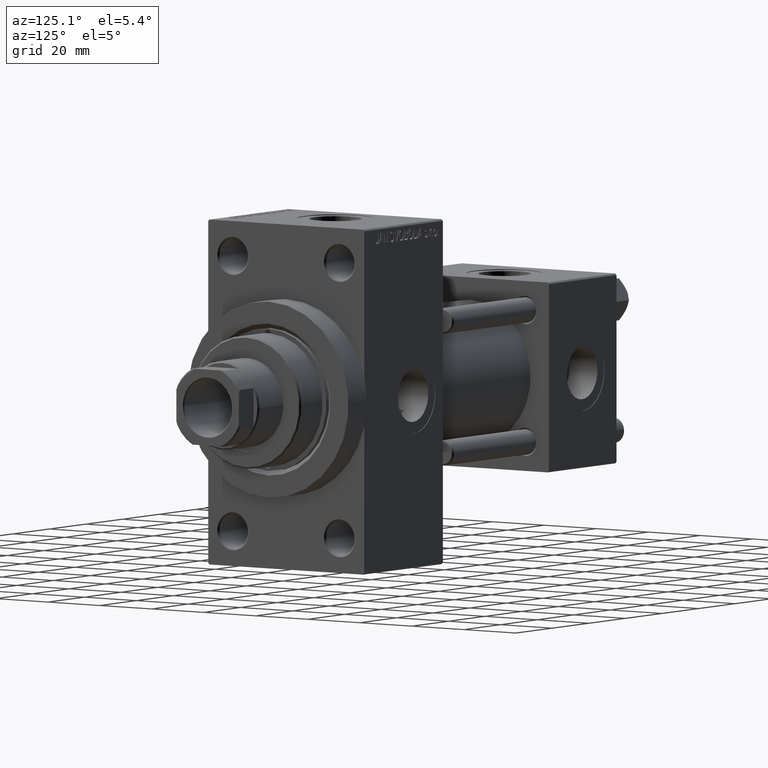
[diagram: clean part render]
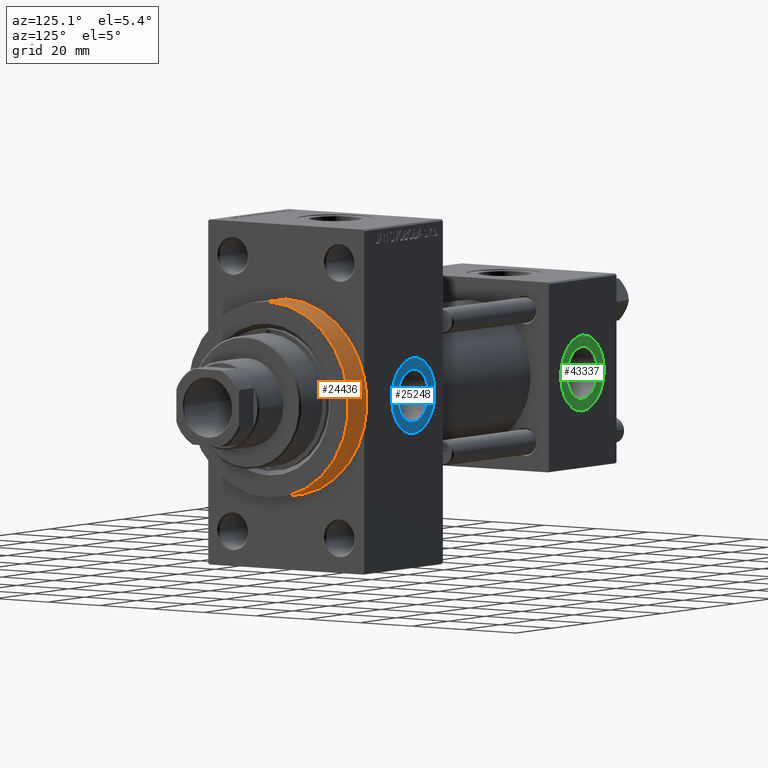
[diagram: same view with three faces highlighted in distinct colors, each labeled with its STEP entity id]
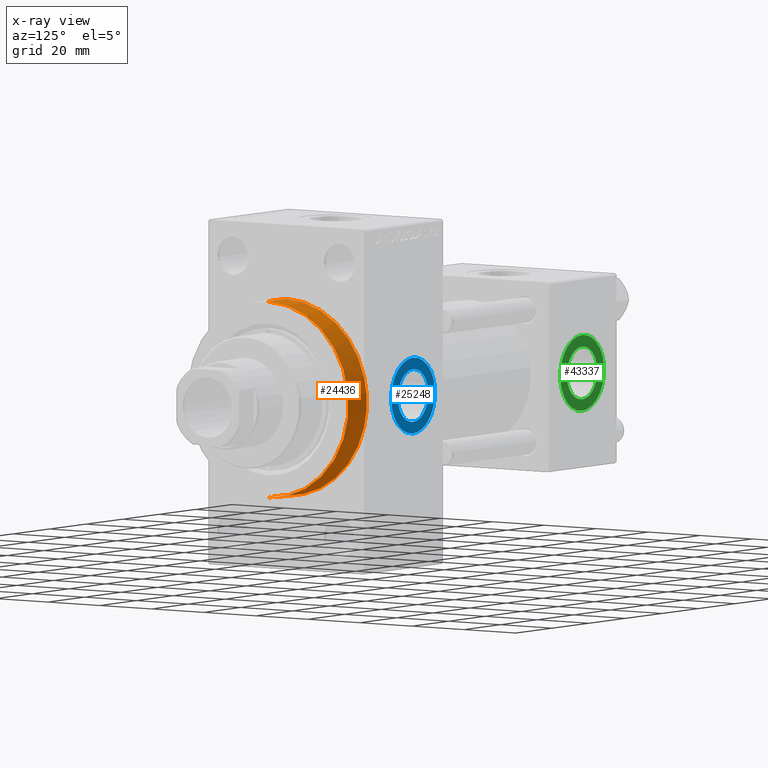
[diagram: x-ray of the same camera — body ghosted, the three highlighted faces saturated]
A machine part, auxiliary view with three faces highlighted in distinct colors.
The next image is the same camera in x-ray (body ghosted, the three faces saturated) — at least one of them is partly hidden behind the body in this view.
Their STEP definitions:

[orange] entity #24436 — the highlighted cylindrical surface (partial cylindrical patch) has radius 31 mm, axis along (-1, -0, -0).
#1157 = DIRECTION ( 'NONE',  ( 1.000000000000000000, 0.000000000000000000, 0.000000000000000000 ) ) ;
#2774 = CARTESIAN_POINT ( 'NONE',  ( 148.0000000000000284, 0.000000000000000000, 0.000000000000000000 ) ) ;
#3003 = VERTEX_POINT ( 'NONE', #24509 ) ;
#3210 = CARTESIAN_POINT ( 'NONE',  ( 148.0000000000000284, 3.796405077356795115E-15, -31.00000000000000000 ) ) ;
#3234 = ORIENTED_EDGE ( 'NONE', *, *, #32455, .T. ) ;
#5202 = ORIENTED_EDGE ( 'NONE', *, *, #42363, .T. ) ;
#5949 = CIRCLE ( 'NONE', #33225, 31.00000000000000000 ) ;
#6505 = VERTEX_POINT ( 'NONE', #27874 ) ;
#7852 = CIRCLE ( 'NONE', #24990, 31.00000000000000000 ) ;
#9158 = CARTESIAN_POINT ( 'NONE',  ( 148.0000000000000284, 0.000000000000000000, 31.00000000000000000 ) ) ;
#9165 = CIRCLE ( 'NONE', #33220, 31.00000000000000000 ) ;
#10092 = EDGE_CURVE ( 'NONE', #3003, #6505, #7852, .T. ) ;
#10764 = DIRECTION ( 'NONE',  ( -1.000000000000000000, -0.000000000000000000, -0.000000000000000000 ) ) ;
#10788 = CYLINDRICAL_SURFACE ( 'NONE', #43188, 31.00000000000000000 ) ;
#11162 = VECTOR ( 'NONE', #10764, 1000.000000000000000 ) ;
#12547 = VECTOR ( 'NONE', #25113, 1000.000000000000000 ) ;
#13077 = VERTEX_POINT ( 'NONE', #41512 ) ;
#13291 = ORIENTED_EDGE ( 'NONE', *, *, #21931, .F. ) ;
#16915 = VERTEX_POINT ( 'NONE', #9158 ) ;
#18143 = DIRECTION ( 'NONE',  ( 1.000000000000000000, 0.000000000000000000, 0.000000000000000000 ) ) ;
#18590 = CARTESIAN_POINT ( 'NONE',  ( 148.0000000000000284, 0.000000000000000000, 0.000000000000000000 ) ) ;
#20764 = CIRCLE ( 'NONE', #36324, 31.00000000000000000 ) ;
#21058 = ORIENTED_EDGE ( 'NONE', *, *, #10092, .T. ) ;
#21305 = FACE_OUTER_BOUND ( 'NONE', #30500, .T. ) ;
#21909 = VERTEX_POINT ( 'NONE', #22230 ) ;
#21931 = EDGE_CURVE ( 'NONE', #16915, #13077, #43693, .T. ) ;
#22230 = CARTESIAN_POINT ( 'NONE',  ( 138.0000000000000000, 3.796405077356795115E-15, -31.00000000000000000 ) ) ;
#22914 = VERTEX_POINT ( 'NONE', #3210 ) ;
#23608 = DIRECTION ( 'NONE',  ( 0.000000000000000000, 0.000000000000000000, -1.000000000000000000 ) ) ;
#24436 = ADVANCED_FACE ( 'NONE', ( #21305 ), #10788, .T. ) ;
#24502 = CARTESIAN_POINT ( 'NONE',  ( 138.0000000000000000, 0.000000000000000000, 0.000000000000000000 ) ) ;
#24509 = CARTESIAN_POINT ( 'NONE',  ( 138.0000000000000000, 29.99999999999999645, -7.810249675906665523 ) ) ;
#24990 = AXIS2_PLACEMENT_3D ( 'NONE', #24502, #46920, #39360 ) ;
#25113 = DIRECTION ( 'NONE',  ( -1.000000000000000000, -0.000000000000000000, -0.000000000000000000 ) ) ;
#27874 = CARTESIAN_POINT ( 'NONE',  ( 138.0000000000000000, 29.99999999999999645, 7.810249675906665523 ) ) ;
#29763 = EDGE_CURVE ( 'NONE', #22914, #16915, #5949, .T. ) ;
#29903 = ORIENTED_EDGE ( 'NONE', *, *, #32499, .T. ) ;
#30500 = EDGE_LOOP ( 'NONE', ( #47870, #5202, #3234, #21058, #29903, #13291 ) ) ;
#32425 = LINE ( 'NONE', #43635, #12547 ) ;
#32455 = EDGE_CURVE ( 'NONE', #21909, #3003, #9165, .T. ) ;
#32499 = EDGE_CURVE ( 'NONE', #6505, #13077, #20764, .T. ) ;
#33220 = AXIS2_PLACEMENT_3D ( 'NONE', #34591, #1157, #23608 ) ;
#33225 = AXIS2_PLACEMENT_3D ( 'NONE', #2774, #18143, #43028 ) ;
#34591 = CARTESIAN_POINT ( 'NONE',  ( 138.0000000000000000, 0.000000000000000000, 0.000000000000000000 ) ) ;
#36278 = DIRECTION ( 'NONE',  ( 0.000000000000000000, 0.000000000000000000, -1.000000000000000000 ) ) ;
#36324 = AXIS2_PLACEMENT_3D ( 'NONE', #36747, #47715, #36278 ) ;
#36419 = DIRECTION ( 'NONE',  ( -1.000000000000000000, -0.000000000000000000, -0.000000000000000000 ) ) ;
#36747 = CARTESIAN_POINT ( 'NONE',  ( 138.0000000000000000, 0.000000000000000000, 0.000000000000000000 ) ) ;
#36869 = CARTESIAN_POINT ( 'NONE',  ( 148.0000000000000284, 0.000000000000000000, 31.00000000000000000 ) ) ;
#39360 = DIRECTION ( 'NONE',  ( 0.000000000000000000, 0.000000000000000000, -1.000000000000000000 ) ) ;
#40533 = DIRECTION ( 'NONE',  ( 0.000000000000000000, 0.000000000000000000, 1.000000000000000000 ) ) ;
#41512 = CARTESIAN_POINT ( 'NONE',  ( 138.0000000000000000, 0.000000000000000000, 31.00000000000000000 ) ) ;
#42363 = EDGE_CURVE ( 'NONE', #22914, #21909, #32425, .T. ) ;
#43028 = DIRECTION ( 'NONE',  ( 0.000000000000000000, 0.000000000000000000, -1.000000000000000000 ) ) ;
#43188 = AXIS2_PLACEMENT_3D ( 'NONE', #18590, #36419, #40533 ) ;
#43635 = CARTESIAN_POINT ( 'NONE',  ( 148.0000000000000284, 3.796405077356795115E-15, -31.00000000000000000 ) ) ;
#43693 = LINE ( 'NONE', #36869, #11162 ) ;
#46920 = DIRECTION ( 'NONE',  ( 1.000000000000000000, 0.000000000000000000, 0.000000000000000000 ) ) ;
#47715 = DIRECTION ( 'NONE',  ( 1.000000000000000000, 0.000000000000000000, 0.000000000000000000 ) ) ;
#47870 = ORIENTED_EDGE ( 'NONE', *, *, #29763, .F. ) ;

[blue] entity #25248 — the highlighted planar face has unit normal (0, 1, 0).
#750 = CARTESIAN_POINT ( 'NONE',  ( 111.0000000000000000, 29.79999999999999716, 0.000000000000000000 ) ) ;
#2049 = ORIENTED_EDGE ( 'NONE', *, *, #17480, .T. ) ;
#2340 = FACE_OUTER_BOUND ( 'NONE', #12117, .T. ) ;
#2813 = DIRECTION ( 'NONE',  ( 0.000000000000000000, 1.000000000000000000, 0.000000000000000000 ) ) ;
#3457 = DIRECTION ( 'NONE',  ( 0.000000000000000000, 1.000000000000000000, 0.000000000000000000 ) ) ;
#7555 = AXIS2_PLACEMENT_3D ( 'NONE', #40782, #33224, #22492 ) ;
#12117 = EDGE_LOOP ( 'NONE', ( #2049, #26275 ) ) ;
#12560 = EDGE_CURVE ( 'NONE', #39596, #36671, #47571, .T. ) ;
#12974 = EDGE_LOOP ( 'NONE', ( #47939, #16276 ) ) ;
#14396 = AXIS2_PLACEMENT_3D ( 'NONE', #40134, #2813, #32341 ) ;
#15649 = DIRECTION ( 'NONE',  ( 0.000000000000000000, 1.000000000000000000, 0.000000000000000000 ) ) ;
#16276 = ORIENTED_EDGE ( 'NONE', *, *, #12560, .F. ) ;
#16601 = CARTESIAN_POINT ( 'NONE',  ( 111.0000000000000000, 29.79999999999999716, 8.329999999999998295 ) ) ;
#16719 = CARTESIAN_POINT ( 'NONE',  ( 111.0000000000000000, 29.79999999999999716, 11.99999999999998934 ) ) ;
#17174 = VERTEX_POINT ( 'NONE', #18636 ) ;
#17228 = PLANE ( 'NONE',  #14396 ) ;
#17475 = CIRCLE ( 'NONE', #22127, 11.99999999999998934 ) ;
#17480 = EDGE_CURVE ( 'NONE', #45849, #17174, #43842, .T. ) ;
#17943 = FACE_BOUND ( 'NONE', #12974, .T. ) ;
#18636 = CARTESIAN_POINT ( 'NONE',  ( 111.0000000000000000, 29.79999999999999716, -11.99999999999998934 ) ) ;
#20024 = CIRCLE ( 'NONE', #7555, 8.329999999999998295 ) ;
#22127 = AXIS2_PLACEMENT_3D ( 'NONE', #36893, #3457, #29574 ) ;
#22492 = DIRECTION ( 'NONE',  ( 0.000000000000000000, 0.000000000000000000, 1.000000000000000000 ) ) ;
#24526 = EDGE_CURVE ( 'NONE', #17174, #45849, #17475, .T. ) ;
#25248 = ADVANCED_FACE ( 'NONE', ( #17943, #2340 ), #17228, .T. ) ;
#25749 = AXIS2_PLACEMENT_3D ( 'NONE', #36771, #27234, #41380 ) ;
#26275 = ORIENTED_EDGE ( 'NONE', *, *, #24526, .T. ) ;
#27234 = DIRECTION ( 'NONE',  ( 0.000000000000000000, 1.000000000000000000, 0.000000000000000000 ) ) ;
#29574 = DIRECTION ( 'NONE',  ( 0.000000000000000000, 0.000000000000000000, 1.000000000000000000 ) ) ;
#30531 = DIRECTION ( 'NONE',  ( 0.000000000000000000, 0.000000000000000000, 1.000000000000000000 ) ) ;
#32341 = DIRECTION ( 'NONE',  ( 0.000000000000000000, -0.000000000000000000, 1.000000000000000000 ) ) ;
#33224 = DIRECTION ( 'NONE',  ( 0.000000000000000000, 1.000000000000000000, 0.000000000000000000 ) ) ;
#34219 = EDGE_CURVE ( 'NONE', #36671, #39596, #20024, .T. ) ;
#36671 = VERTEX_POINT ( 'NONE', #16601 ) ;
#36771 = CARTESIAN_POINT ( 'NONE',  ( 111.0000000000000000, 29.79999999999999716, 0.000000000000000000 ) ) ;
#36893 = CARTESIAN_POINT ( 'NONE',  ( 111.0000000000000000, 29.79999999999999716, 0.000000000000000000 ) ) ;
#39185 = AXIS2_PLACEMENT_3D ( 'NONE', #750, #15649, #30531 ) ;
#39596 = VERTEX_POINT ( 'NONE', #39948 ) ;
#39948 = CARTESIAN_POINT ( 'NONE',  ( 111.0000000000000000, 29.79999999999999716, -8.329999999999998295 ) ) ;
#40134 = CARTESIAN_POINT ( 'NONE',  ( 111.0000000000000000, 29.79999999999999716, 0.000000000000000000 ) ) ;
#40782 = CARTESIAN_POINT ( 'NONE',  ( 111.0000000000000000, 29.79999999999999716, 0.000000000000000000 ) ) ;
#41380 = DIRECTION ( 'NONE',  ( 0.000000000000000000, 0.000000000000000000, 1.000000000000000000 ) ) ;
#43842 = CIRCLE ( 'NONE', #39185, 11.99999999999998934 ) ;
#45849 = VERTEX_POINT ( 'NONE', #16719 ) ;
#47571 = CIRCLE ( 'NONE', #25749, 8.329999999999998295 ) ;
#47939 = ORIENTED_EDGE ( 'NONE', *, *, #34219, .F. ) ;

[green] entity #43337 — the highlighted planar face has unit normal (0, 1, 0).
#546 = CIRCLE ( 'NONE', #11489, 8.330000000000001847 ) ;
#594 = CARTESIAN_POINT ( 'NONE',  ( 18.50000000000000000, 29.79999999999999361, -8.330000000000001847 ) ) ;
#1707 = DIRECTION ( 'NONE',  ( 0.000000000000000000, -0.000000000000000000, 1.000000000000000000 ) ) ;
#1773 = DIRECTION ( 'NONE',  ( 0.000000000000000000, 1.000000000000000000, 0.000000000000000000 ) ) ;
#3873 = AXIS2_PLACEMENT_3D ( 'NONE', #22920, #40719, #33638 ) ;
#4295 = CARTESIAN_POINT ( 'NONE',  ( 18.50000000000000000, 29.79999999999999361, 12.00000000000000178 ) ) ;
#6859 = VERTEX_POINT ( 'NONE', #10891 ) ;
#7783 = EDGE_CURVE ( 'NONE', #25536, #6859, #24929, .T. ) ;
#9515 = CIRCLE ( 'NONE', #46907, 12.00000000000000178 ) ;
#10561 = ORIENTED_EDGE ( 'NONE', *, *, #44330, .T. ) ;
#10891 = CARTESIAN_POINT ( 'NONE',  ( 18.50000000000000000, 29.79999999999999361, 8.330000000000001847 ) ) ;
#11327 = CARTESIAN_POINT ( 'NONE',  ( 18.50000000000000000, 29.79999999999999361, 0.000000000000000000 ) ) ;
#11489 = AXIS2_PLACEMENT_3D ( 'NONE', #28128, #1773, #34720 ) ;
#14271 = DIRECTION ( 'NONE',  ( 0.000000000000000000, 1.000000000000000000, 0.000000000000000000 ) ) ;
#22308 = DIRECTION ( 'NONE',  ( 0.000000000000000000, 0.000000000000000000, 1.000000000000000000 ) ) ;
#22920 = CARTESIAN_POINT ( 'NONE',  ( 18.50000000000000000, 29.79999999999999361, 0.000000000000000000 ) ) ;
#24160 = PLANE ( 'NONE',  #46866 ) ;
#24929 = CIRCLE ( 'NONE', #3873, 8.330000000000001847 ) ;
#25014 = DIRECTION ( 'NONE',  ( 0.000000000000000000, 0.000000000000000000, 1.000000000000000000 ) ) ;
#25536 = VERTEX_POINT ( 'NONE', #594 ) ;
#27448 = ORIENTED_EDGE ( 'NONE', *, *, #7783, .F. ) ;
#28128 = CARTESIAN_POINT ( 'NONE',  ( 18.50000000000000000, 29.79999999999999361, 0.000000000000000000 ) ) ;
#28222 = CIRCLE ( 'NONE', #40669, 12.00000000000000178 ) ;
#31673 = EDGE_CURVE ( 'NONE', #6859, #25536, #546, .T. ) ;
#31954 = DIRECTION ( 'NONE',  ( 0.000000000000000000, 1.000000000000000000, 0.000000000000000000 ) ) ;
#33251 = VERTEX_POINT ( 'NONE', #46638 ) ;
#33296 = EDGE_LOOP ( 'NONE', ( #46134, #27448 ) ) ;
#33638 = DIRECTION ( 'NONE',  ( 0.000000000000000000, 0.000000000000000000, 1.000000000000000000 ) ) ;
#34720 = DIRECTION ( 'NONE',  ( 0.000000000000000000, 0.000000000000000000, 1.000000000000000000 ) ) ;
#37195 = VERTEX_POINT ( 'NONE', #4295 ) ;
#37628 = ORIENTED_EDGE ( 'NONE', *, *, #44439, .T. ) ;
#38784 = CARTESIAN_POINT ( 'NONE',  ( 18.50000000000000000, 29.79999999999999361, 0.000000000000000000 ) ) ;
#39024 = FACE_OUTER_BOUND ( 'NONE', #45239, .T. ) ;
#40669 = AXIS2_PLACEMENT_3D ( 'NONE', #11327, #40839, #22308 ) ;
#40719 = DIRECTION ( 'NONE',  ( 0.000000000000000000, 1.000000000000000000, 0.000000000000000000 ) ) ;
#40839 = DIRECTION ( 'NONE',  ( 0.000000000000000000, 1.000000000000000000, 0.000000000000000000 ) ) ;
#43295 = CARTESIAN_POINT ( 'NONE',  ( 18.50000000000000000, 29.79999999999999361, 0.000000000000000000 ) ) ;
#43337 = ADVANCED_FACE ( 'NONE', ( #46102, #39024 ), #24160, .T. ) ;
#44330 = EDGE_CURVE ( 'NONE', #33251, #37195, #9515, .T. ) ;
#44439 = EDGE_CURVE ( 'NONE', #37195, #33251, #28222, .T. ) ;
#45239 = EDGE_LOOP ( 'NONE', ( #37628, #10561 ) ) ;
#46102 = FACE_BOUND ( 'NONE', #33296, .T. ) ;
#46134 = ORIENTED_EDGE ( 'NONE', *, *, #31673, .F. ) ;
#46638 = CARTESIAN_POINT ( 'NONE',  ( 18.50000000000000000, 29.79999999999999361, -12.00000000000000178 ) ) ;
#46866 = AXIS2_PLACEMENT_3D ( 'NONE', #38784, #31954, #1707 ) ;
#46907 = AXIS2_PLACEMENT_3D ( 'NONE', #43295, #14271, #25014 ) ;